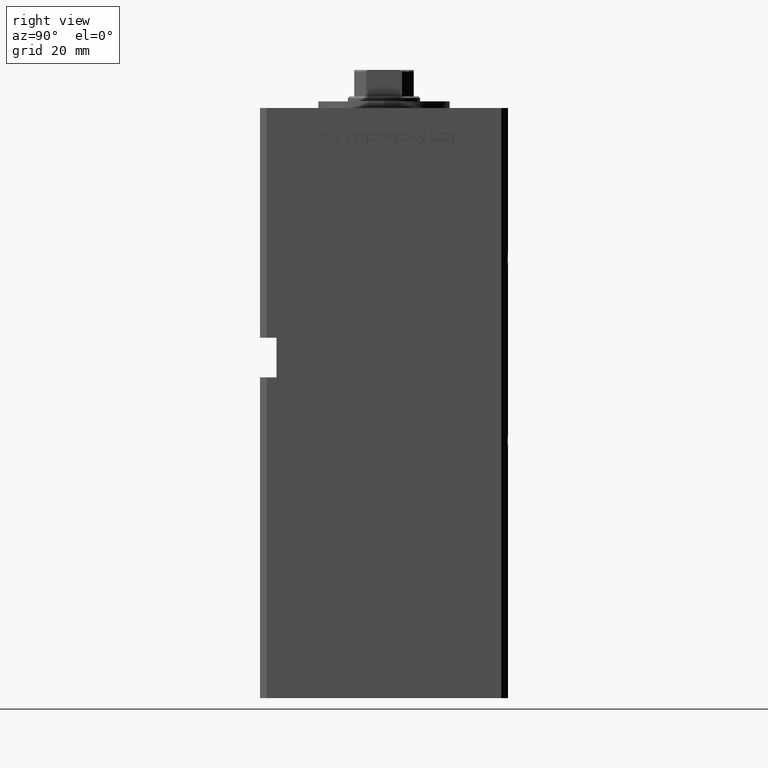
[diagram: clean part render]
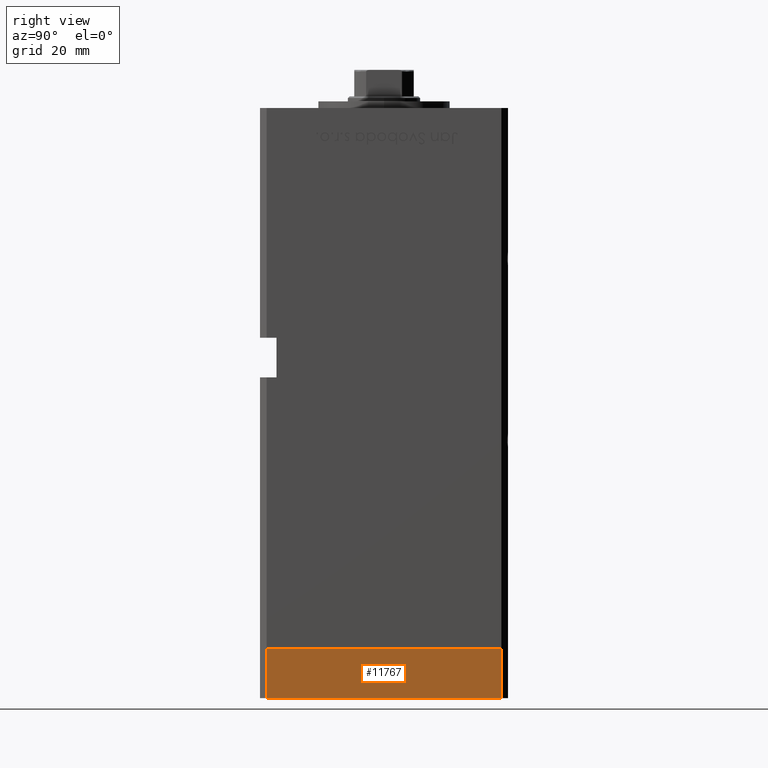
[diagram: same view with one face highlighted and labeled with its STEP entity id]
A machine part, right view. The second image highlights one B-rep face of the part: STEP entity #11767.
In plain terms, the highlighted planar face has unit normal (1, 0, 0).
Its self-contained STEP definition (entity closure, byte-faithful):
#2171 = CARTESIAN_POINT ( 'NONE',  ( -42.50000000000000711, 35.49999999999997158, -15.00000000000000000 ) ) ;
#2275 = VECTOR ( 'NONE', #30948, 1000.000000000000000 ) ;
#2565 = VERTEX_POINT ( 'NONE', #36093 ) ;
#3819 = DIRECTION ( 'NONE',  ( 0.000000000000000000, 0.000000000000000000, 1.000000000000000000 ) ) ;
#6694 = ORIENTED_EDGE ( 'NONE', *, *, #11732, .F. ) ;
#8826 = DIRECTION ( 'NONE',  ( 0.000000000000000000, 0.000000000000000000, 1.000000000000000000 ) ) ;
#10797 = DIRECTION ( 'NONE',  ( 9.773090005503140331E-17, -1.000000000000000000, 0.000000000000000000 ) ) ;
#11601 = PLANE ( 'NONE',  #22860 ) ;
#11732 = EDGE_CURVE ( 'NONE', #40076, #2565, #14847, .T. ) ;
#11754 = CARTESIAN_POINT ( 'NONE',  ( -42.50000000000000711, 35.49999999999997158, -15.00000000000000000 ) ) ;
#11767 = ADVANCED_FACE ( 'NONE', ( #32566 ), #11601, .T. ) ;
#13483 = EDGE_CURVE ( 'NONE', #48552, #40690, #38996, .T. ) ;
#14129 = ORIENTED_EDGE ( 'NONE', *, *, #16773, .F. ) ;
#14847 = LINE ( 'NONE', #31227, #49436 ) ;
#16773 = EDGE_CURVE ( 'NONE', #48552, #40076, #20935, .T. ) ;
#17598 = EDGE_CURVE ( 'NONE', #40690, #2565, #19710, .T. ) ;
#19710 = LINE ( 'NONE', #52730, #24753 ) ;
#19948 = DIRECTION ( 'NONE',  ( -1.000000000000000000, -9.773090005503140331E-17, 0.000000000000000000 ) ) ;
#20935 = LINE ( 'NONE', #45122, #45288 ) ;
#22860 = AXIS2_PLACEMENT_3D ( 'NONE', #52704, #19948, #45163 ) ;
#24753 = VECTOR ( 'NONE', #3819, 1000.000000000000000 ) ;
#28549 = CARTESIAN_POINT ( 'NONE',  ( -42.50000000000000711, 35.49999999999997158, 0.000000000000000000 ) ) ;
#28758 = ORIENTED_EDGE ( 'NONE', *, *, #13483, .T. ) ;
#30531 = ORIENTED_EDGE ( 'NONE', *, *, #17598, .T. ) ;
#30948 = DIRECTION ( 'NONE',  ( 9.773090005503140331E-17, -1.000000000000000000, 0.000000000000000000 ) ) ;
#31227 = CARTESIAN_POINT ( 'NONE',  ( -42.50000000000000711, 35.49999999999997158, 0.000000000000000000 ) ) ;
#32566 = FACE_OUTER_BOUND ( 'NONE', #33335, .T. ) ;
#33335 = EDGE_LOOP ( 'NONE', ( #6694, #14129, #28758, #30531 ) ) ;
#36093 = CARTESIAN_POINT ( 'NONE',  ( -42.50000000000000000, -35.50000000000000711, 0.000000000000000000 ) ) ;
#38996 = LINE ( 'NONE', #2171, #2275 ) ;
#40076 = VERTEX_POINT ( 'NONE', #28549 ) ;
#40690 = VERTEX_POINT ( 'NONE', #41851 ) ;
#41851 = CARTESIAN_POINT ( 'NONE',  ( -42.50000000000000000, -35.50000000000000711, -15.00000000000000000 ) ) ;
#45122 = CARTESIAN_POINT ( 'NONE',  ( -42.50000000000000711, 35.49999999999997158, -15.00000000000000000 ) ) ;
#45163 = DIRECTION ( 'NONE',  ( 9.773090005503140331E-17, -1.000000000000000000, 0.000000000000000000 ) ) ;
#45288 = VECTOR ( 'NONE', #8826, 1000.000000000000000 ) ;
#48552 = VERTEX_POINT ( 'NONE', #11754 ) ;
#49436 = VECTOR ( 'NONE', #10797, 1000.000000000000000 ) ;
#52704 = CARTESIAN_POINT ( 'NONE',  ( -42.50000000000000711, 35.49999999999997158, -15.00000000000000000 ) ) ;
#52730 = CARTESIAN_POINT ( 'NONE',  ( -42.50000000000000000, -35.50000000000000711, -15.00000000000000000 ) ) ;